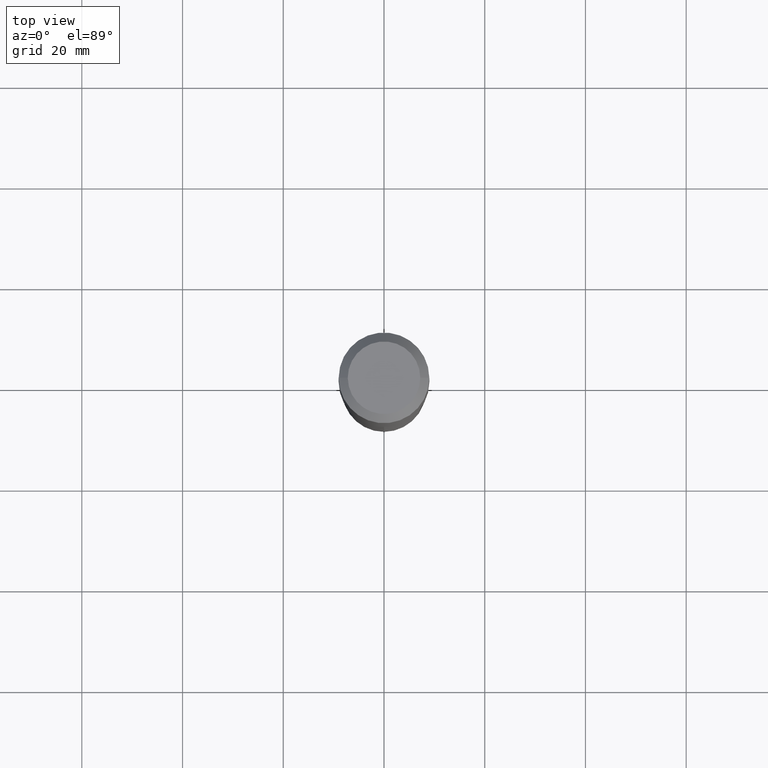
[diagram: clean part render]
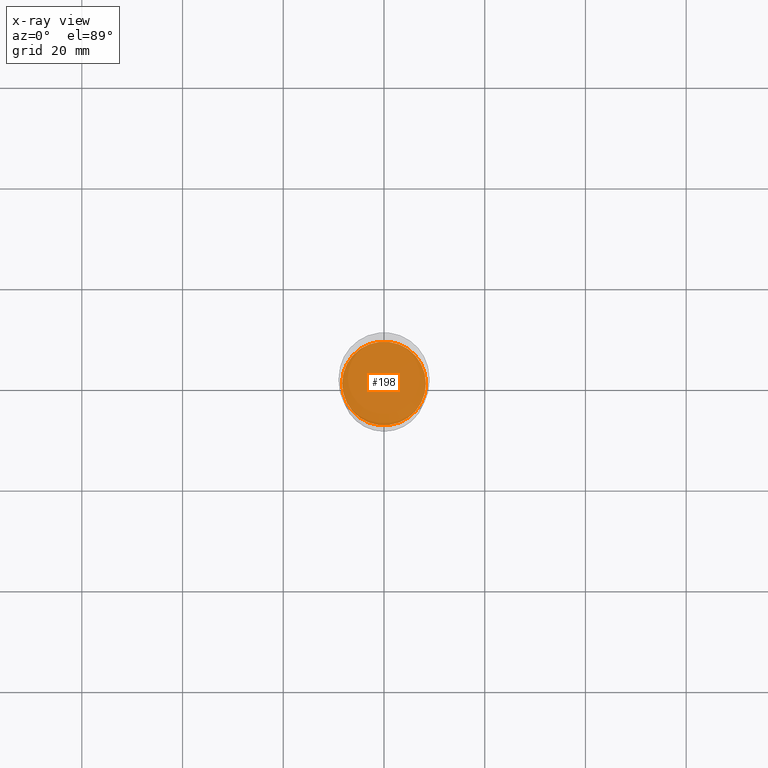
[diagram: x-ray — body ghosted, one internal face saturated and labeled with its STEP entity id]
A machine part, top view, then the same camera in x-ray: the body is ghosted and one INTERNAL B-rep face — a face not visible from any outside direction — is saturated and labeled: STEP entity #198.
In plain terms, the highlighted planar face has unit normal (-0, 0, 1).
Its self-contained STEP definition (entity closure, byte-faithful):
#10 = FACE_OUTER_BOUND ( 'NONE', #207, .T. ) ;
#19 = ORIENTED_EDGE ( 'NONE', *, *, #58, .F. ) ;
#57 = VERTEX_POINT ( 'NONE', #475 ) ;
#58 = EDGE_CURVE ( 'NONE', #164, #57, #88, .T. ) ;
#88 = CIRCLE ( 'NONE', #367, 0.3276000000000000023 ) ;
#90 = CIRCLE ( 'NONE', #439, 0.3276000000000000023 ) ;
#116 = CARTESIAN_POINT ( 'NONE',  ( 3.362497591358698235E-29, -1.354413189801272439E-14, -2.625199999999999978 ) ) ;
#126 = PLANE ( 'NONE',  #390 ) ;
#164 = VERTEX_POINT ( 'NONE', #241 ) ;
#198 = ADVANCED_FACE ( 'NONE', ( #10 ), #126, .F. ) ;
#201 = DIRECTION ( 'NONE',  ( 1.000000000000000000, -6.982962677686265922E-15, 4.876176775795935793E-29 ) ) ;
#207 = EDGE_LOOP ( 'NONE', ( #441, #19 ) ) ;
#236 = DIRECTION ( 'NONE',  ( 1.000000000000000000, -6.982962677686264344E-15, 0.000000000000000000 ) ) ;
#241 = CARTESIAN_POINT ( 'NONE',  ( -0.3276000000000000023, -6.835449581206825787E-15, -2.625199999999999978 ) ) ;
#256 = EDGE_CURVE ( 'NONE', #57, #164, #90, .T. ) ;
#294 = DIRECTION ( 'NONE',  ( -2.445468806185136597E-29, 3.491481338843145583E-15, 1.000000000000000000 ) ) ;
#312 = CARTESIAN_POINT ( 'NONE',  ( 6.419844709997221136E-29, -9.165836810731026791E-15, -2.625199999999999978 ) ) ;
#366 = CARTESIAN_POINT ( 'NONE',  ( 6.419844709997221136E-29, -9.165836810731026791E-15, -2.625199999999999978 ) ) ;
#367 = AXIS2_PLACEMENT_3D ( 'NONE', #366, #294, #435 ) ;
#390 = AXIS2_PLACEMENT_3D ( 'NONE', #116, #426, #201 ) ;
#426 = DIRECTION ( 'NONE',  ( -2.438088387897960049E-29, 3.491481338843145188E-15, 1.000000000000000000 ) ) ;
#435 = DIRECTION ( 'NONE',  ( 1.000000000000000000, -6.982962677686264344E-15, 0.000000000000000000 ) ) ;
#439 = AXIS2_PLACEMENT_3D ( 'NONE', #312, #466, #236 ) ;
#441 = ORIENTED_EDGE ( 'NONE', *, *, #256, .F. ) ;
#466 = DIRECTION ( 'NONE',  ( -2.445468806185136597E-29, 3.491481338843145583E-15, 1.000000000000000000 ) ) ;
#475 = CARTESIAN_POINT ( 'NONE',  ( 0.3276000000000000023, -1.145345538394104711E-14, -2.625199999999999978 ) ) ;